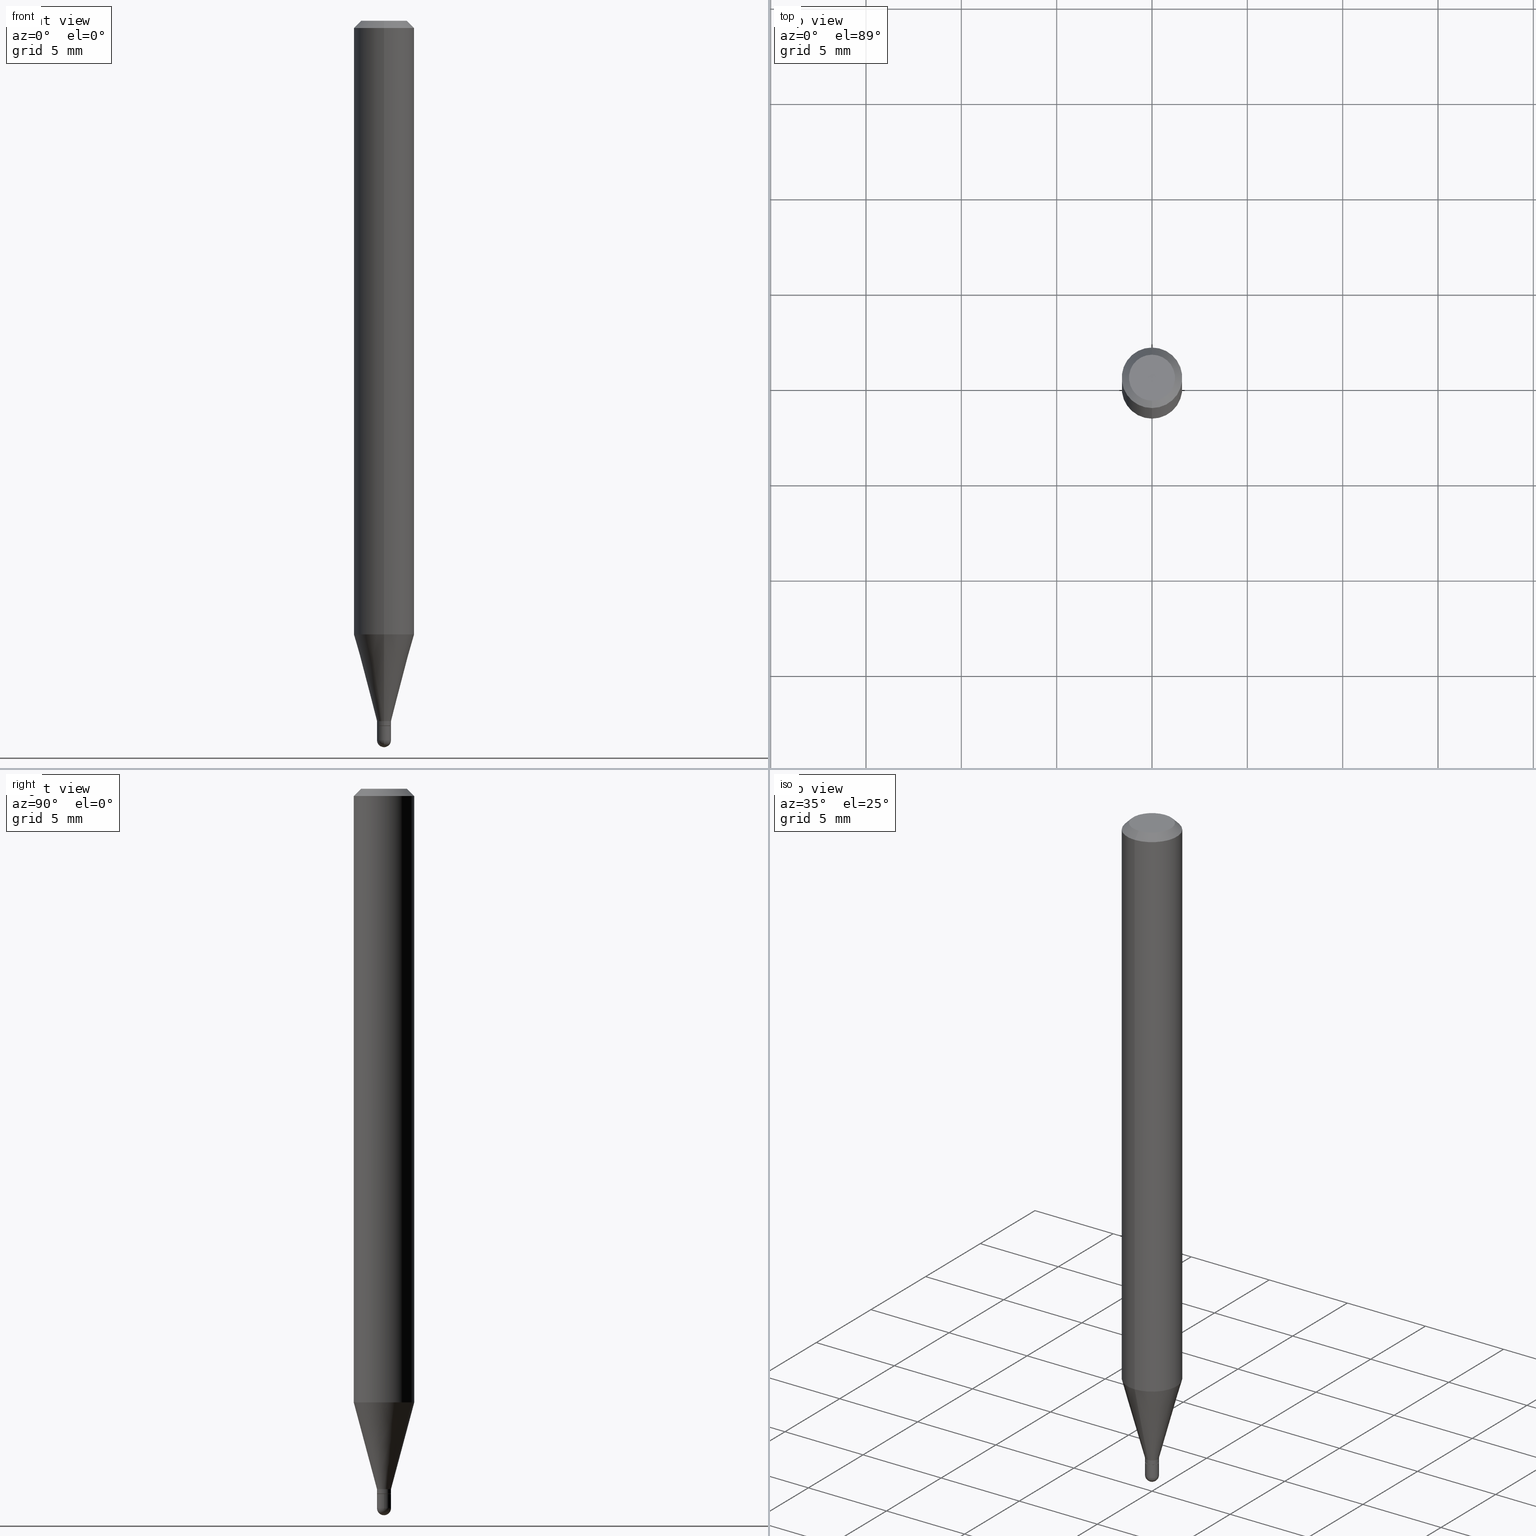
[diagram: canonical four-view strip — front | top / right | iso, engineering-drawing reading convention]
A machine part, canonical four-view strip (front | top / right | iso — engineering-drawing reading convention). The complete STEP part file that produces these views, byte-faithful:
ISO-10303-21;
HEADER;
FILE_DESCRIPTION (( 'STEP AP203' ),
    '1' );
FILE_NAME ('03053.STEP',
    '2024-03-08T18:04:14',
    ( '' ),
    ( '' ),
    'SwSTEP 2.0',
    'SolidWorks 2023',
    '' );
FILE_SCHEMA (( 'CONFIG_CONTROL_DESIGN' ));
ENDSEC;

DATA;
#1 = LOCAL_TIME ( 13, 4, 14.00000000000000000, #149 ) ;
#2 = CARTESIAN_POINT ( 'NONE',  ( 4.364351673553919652E-16, 0.06249999999999995143, -0.01499999999999997863 ) ) ;
#3 = AXIS2_PLACEMENT_3D ( 'NONE', #198, #191, #73 ) ;
#4 = VERTEX_POINT ( 'NONE', #333 ) ;
#5 = ADVANCED_FACE ( 'NONE', ( #252 ), #392, .T. ) ;
#6 = DIRECTION ( 'NONE',  ( 1.000000000000000000, -6.982962677686299054E-15, 0.000000000000000000 ) ) ;
#7 = ORIENTED_EDGE ( 'NONE', *, *, #282, .T. ) ;
#8 = DIRECTION ( 'NONE',  ( -2.445468806185136597E-29, 3.491481338843145583E-15, 1.000000000000000000 ) ) ;
#9 = ORIENTED_EDGE ( 'NONE', *, *, #81, .T. ) ;
#10 = DIRECTION ( 'NONE',  ( -2.445481349067954687E-29, 3.491463376721053422E-15, 1.000000000000000000 ) ) ;
#11 = EDGE_LOOP ( 'NONE', ( #364, #246, #322, #272, #13 ) ) ;
#12 = CARTESIAN_POINT ( 'NONE',  ( 3.631503920468710854E-29, -5.188371266710256857E-15, -1.485500000000000043 ) ) ;
#13 = ORIENTED_EDGE ( 'NONE', *, *, #143, .F. ) ;
#14 = EDGE_CURVE ( 'NONE', #47, #237, #351, .T. ) ;
#15 = DIRECTION ( 'NONE',  ( -2.445468806185136597E-29, 3.491481338843145583E-15, 1.000000000000000000 ) ) ;
#16 = ORIENTED_EDGE ( 'NONE', *, *, #471, .T. ) ;
#17 = CARTESIAN_POINT ( 'NONE',  ( 3.536166030752262621E-29, -5.048656042738642851E-15, -1.445999999999999730 ) ) ;
#18 = AXIS2_PLACEMENT_3D ( 'NONE', #77, #283, #277 ) ;
#19 = ORIENTED_EDGE ( 'NONE', *, *, #265, .F. ) ;
#20 = AXIS2_PLACEMENT_3D ( 'NONE', #263, #426, #501 ) ;
#21 = DATE_AND_TIME ( #215, #433 ) ;
#22 = ADVANCED_FACE ( 'NONE', ( #182 ), #301, .T. ) ;
#23 = FACE_OUTER_BOUND ( 'NONE', #156, .T. ) ;
#24 = CARTESIAN_POINT ( 'NONE',  ( 3.560620844242942333E-29, -5.083570676505854773E-15, -1.456000000000000183 ) ) ;
#25 = DIRECTION ( 'NONE',  ( -2.445481349067954126E-29, 3.491463376721053817E-15, 1.000000000000000000 ) ) ;
#26 = LOCAL_TIME ( 13, 4, 14.00000000000000000, #39 ) ;
#27 = VECTOR ( 'NONE', #379, 39.37007874015748143 ) ;
#28 = CARTESIAN_POINT ( 'NONE',  ( -4.287811248607203282E-16, -0.06250000000000005551, -0.01499999999999954321 ) ) ;
#29 = PERSON_AND_ORGANIZATION ( #262, #261 ) ;
#30 = PLANE ( 'NONE',  #185 ) ;
#31 = PERSON_AND_ORGANIZATION_ROLE ( 'design_supplier' ) ;
#32 = CARTESIAN_POINT ( 'NONE',  ( -5.856629225201852265E-45, 8.361628461660476636E-31, 2.394877894870875462E-16 ) ) ;
#33 = PERSON_AND_ORGANIZATION ( #262, #261 ) ;
#34 = AXIS2_PLACEMENT_3D ( 'NONE', #463, #180, #339 ) ;
#35 = AXIS2_PLACEMENT_3D ( 'NONE', #386, #499, #144 ) ;
#36 = LINE ( 'NONE', #400, #267 ) ;
#37 = CC_DESIGN_PERSON_AND_ORGANIZATION_ASSIGNMENT ( #225, #387, ( #140 ) ) ;
#38 = ORIENTED_EDGE ( 'NONE', *, *, #147, .F. ) ;
#39 = COORDINATED_UNIVERSAL_TIME_OFFSET ( 5, 0, .BEHIND. ) ;
#40 = CARTESIAN_POINT ( 'NONE',  ( -5.856629225201852265E-45, 8.361628461660476636E-31, 2.394877894870875462E-16 ) ) ;
#41 = ORIENTED_EDGE ( 'NONE', *, *, #442, .T. ) ;
#42 = CARTESIAN_POINT ( 'NONE',  ( 3.560620844242942333E-29, -5.083570676505854773E-15, -1.456000000000000183 ) ) ;
#43 = EDGE_CURVE ( 'NONE', #127, #361, #169, .T. ) ;
#44 = DIRECTION ( 'NONE',  ( -4.937700262164674260E-15, -0.7071067811865632269, 0.7071067811865319186 ) ) ;
#45 = VECTOR ( 'NONE', #473, 39.37007874015748854 ) ;
#46 = FACE_OUTER_BOUND ( 'NONE', #11, .T. ) ;
#47 = VERTEX_POINT ( 'NONE', #221 ) ;
#48 = ORIENTED_EDGE ( 'NONE', *, *, #43, .F. ) ;
#49 = DIRECTION ( 'NONE',  ( 1.000000000000000000, -6.982962677686299054E-15, 0.000000000000000000 ) ) ;
#50 = APPROVAL_PERSON_ORGANIZATION ( #29, #128, #256 ) ;
#51 = ORIENTED_EDGE ( 'NONE', *, *, #120, .T. ) ;
#52 = ADVANCED_FACE ( 'NONE', ( #495 ), #136, .T. ) ;
#53 = AXIS2_PLACEMENT_3D ( 'NONE', #186, #303, #106 ) ;
#54 = CARTESIAN_POINT ( 'NONE',  ( 3.631503920468710854E-29, -5.188371266710256857E-15, -1.485500000000000043 ) ) ;
#55 = VERTEX_POINT ( 'NONE', #266 ) ;
#56 = DIRECTION ( 'NONE',  ( 1.000000000000000000, -6.982962677686266711E-15, 4.876176775795935793E-29 ) ) ;
#57 = ORIENTED_EDGE ( 'NONE', *, *, #414, .T. ) ;
#58 = ADVANCED_FACE ( 'NONE', ( #141 ), #139, .T. ) ;
#59 = COORDINATED_UNIVERSAL_TIME_OFFSET ( 5, 0, .BEHIND. ) ;
#60 = VECTOR ( 'NONE', #245, 39.37007874015748143 ) ;
#61 = EDGE_LOOP ( 'NONE', ( #154, #74 ) ) ;
#62 = CIRCLE ( 'NONE', #295, 0.01400000000000000203 ) ;
#63 = CIRCLE ( 'NONE', #275, 0.06250000000000000000 ) ;
#64 = CARTESIAN_POINT ( 'NONE',  ( -3.773273898774340269E-16, -0.04749999999999999362, 4.053322998813375719E-16 ) ) ;
#65 = FACE_OUTER_BOUND ( 'NONE', #481, .T. ) ;
#66 = DIRECTION ( 'NONE',  ( -2.445468806185136597E-29, 3.491481338843145583E-15, 1.000000000000000000 ) ) ;
#67 = ADVANCED_FACE ( 'NONE', ( #459 ), #343, .F. ) ;
#68 = CIRCLE ( 'NONE', #359, 0.01449999999999992441 ) ;
#69 = DIRECTION ( 'NONE',  ( -2.445481349067954687E-29, 3.491463376721053422E-15, 1.000000000000000000 ) ) ;
#70 =( CONVERSION_BASED_UNIT ( 'INCH', #187 ) LENGTH_UNIT ( ) NAMED_UNIT ( #231 ) );
#71 = DIRECTION ( 'NONE',  ( -6.982962677686265922E-15, -1.000000000000000000, 3.491463376721053028E-15 ) ) ;
#72 = EDGE_CURVE ( 'NONE', #211, #237, #224, .T. ) ;
#73 = DIRECTION ( 'NONE',  ( 1.000000000000000000, -6.982962677686299054E-15, 0.000000000000000000 ) ) ;
#74 = ORIENTED_EDGE ( 'NONE', *, *, #143, .T. ) ;
#75 = DATE_AND_TIME ( #268, #472 ) ;
#76 = CIRCLE ( 'NONE', #440, 0.06250000000000000000 ) ;
#77 = CARTESIAN_POINT ( 'NONE',  ( 0.000000000000000000, 0.000000000000000000, 0.000000000000000000 ) ) ;
#78 = ORIENTED_EDGE ( 'NONE', *, *, #241, .F. ) ;
#79 = DIRECTION ( 'NONE',  ( -6.982962677686266711E-15, -1.000000000000000000, 3.491463376721053028E-15 ) ) ;
#80 = VERTEX_POINT ( 'NONE', #181 ) ;
#81 = EDGE_CURVE ( 'NONE', #205, #4, #367, .T. ) ;
#82 = DIRECTION ( 'NONE',  ( 2.445481349067954687E-29, -3.491463376721053422E-15, -1.000000000000000000 ) ) ;
#83 = VERTEX_POINT ( 'NONE', #64 ) ;
#84 = AXIS2_PLACEMENT_3D ( 'NONE', #119, #82, #238 ) ;
#85 = CARTESIAN_POINT ( 'NONE',  ( 2.735589532676716016E-16, 0.01449999999999487463, -1.445999999999999730 ) ) ;
#86 = CONICAL_SURFACE ( 'NONE', #419, 0.01400000000000000203, 0.7853981633974739252 ) ;
#87 = FACE_OUTER_BOUND ( 'NONE', #94, .T. ) ;
#88 = ORIENTED_EDGE ( 'NONE', *, *, #337, .F. ) ;
#89 = ADVANCED_FACE ( 'NONE', ( #345 ), #497, .F. ) ;
#90 = DIRECTION ( 'NONE',  ( -2.445481349067954687E-29, 3.491463376721053422E-15, 1.000000000000000000 ) ) ;
#91 = EDGE_LOOP ( 'NONE', ( #330, #51, #170, #369 ) ) ;
#92 = LINE ( 'NONE', #297, #124 ) ;
#93 = AXIS2_PLACEMENT_3D ( 'NONE', #12, #133, #370 ) ;
#94 = EDGE_LOOP ( 'NONE', ( #410, #57, #16, #132 ) ) ;
#95 = CIRCLE ( 'NONE', #3, 0.01450000000000000074 ) ;
#96 = FACE_OUTER_BOUND ( 'NONE', #113, .T. ) ;
#97 = ORIENTED_EDGE ( 'NONE', *, *, #273, .F. ) ;
#98 = EDGE_CURVE ( 'NONE', #486, #452, #403, .T. ) ;
#99 = DATE_TIME_ROLE ( 'creation_date' ) ;
#100 = ORIENTED_EDGE ( 'NONE', *, *, #233, .F. ) ;
#101 = DATE_AND_TIME ( #152, #302 ) ;
#102 = DIRECTION ( 'NONE',  ( -2.445481349067954687E-29, 3.491463376721053422E-15, 1.000000000000000000 ) ) ;
#103 = CARTESIAN_POINT ( 'NONE',  ( 1.012529588264864651E-16, 0.01449999999999491626, -1.456000000000000183 ) ) ;
#104 = CC_DESIGN_DATE_AND_TIME_ASSIGNMENT ( #75, #99, ( #496 ) ) ;
#105 = DIRECTION ( 'NONE',  ( -6.982962677686265922E-15, -1.000000000000000000, 4.370956789862821150E-15 ) ) ;
#106 = DIRECTION ( 'NONE',  ( -6.982962677686265922E-15, -1.000000000000000000, 3.491463376721053028E-15 ) ) ;
#107 = APPROVAL_ROLE ( '' ) ;
#108 = AXIS2_PLACEMENT_3D ( 'NONE', #109, #145, #71 ) ;
#109 = CARTESIAN_POINT ( 'NONE',  ( 0.000000000000000000, 0.000000000000000000, 0.000000000000000000 ) ) ;
#110 = ADVANCED_FACE ( 'NONE', ( #65 ), #30, .F. ) ;
#111 =( NAMED_UNIT ( * ) SI_UNIT ( $, .STERADIAN. ) SOLID_ANGLE_UNIT ( ) );
#112 = CARTESIAN_POINT ( 'NONE',  ( 3.560620844242942333E-29, -5.083570676505854773E-15, -1.456000000000000183 ) ) ;
#113 = EDGE_LOOP ( 'NONE', ( #209, #122, #165, #78 ) ) ;
#114 = APPROVAL_STATUS ( 'not_yet_approved' ) ;
#115 = CARTESIAN_POINT ( 'NONE',  ( 4.440892098500937762E-16, 0.06249999999999993755, -0.01499999999999997863 ) ) ;
#116 = AXIS2_PLACEMENT_3D ( 'NONE', #200, #357, #476 ) ;
#117 = CYLINDRICAL_SURFACE ( 'NONE', #18, 0.01449999999999992441 ) ;
#118 = MANIFOLD_SOLID_BREP ( 'Body-Move/Copy2[2]', #434 ) ;
#119 = CARTESIAN_POINT ( 'NONE',  ( 3.668222023601873193E-31, -5.237195065081496267E-17, -0.01499999999999976179 ) ) ;
#120 = EDGE_CURVE ( 'NONE', #55, #255, #474, .T. ) ;
#121 = FACE_OUTER_BOUND ( 'NONE', #395, .T. ) ;
#122 = ORIENTED_EDGE ( 'NONE', *, *, #233, .T. ) ;
#123 = MANIFOLD_SOLID_BREP ( 'Body-Move/Copy2[1]', #326 ) ;
#124 = VECTOR ( 'NONE', #363, 39.37007874015748143 ) ;
#125 = CARTESIAN_POINT ( 'NONE',  ( 1.012523398458496063E-16, 0.01399999999999491755, -1.456000000000000183 ) ) ;
#126 = CONICAL_SURFACE ( 'NONE', #420, 0.01449999999999992441, 0.2617993877991505181 ) ;
#127 = VERTEX_POINT ( 'NONE', #269 ) ;
#128 = APPROVAL ( #469, 'UNSPECIFIED' ) ;
#129 = DIRECTION ( 'NONE',  ( -2.445468806185136877E-29, 3.491481338843145188E-15, 1.000000000000000000 ) ) ;
#130 = VERTEX_POINT ( 'NONE', #456 ) ;
#131 = LINE ( 'NONE', #177, #60 ) ;
#132 = ORIENTED_EDGE ( 'NONE', *, *, #98, .F. ) ;
#133 = DIRECTION ( 'NONE',  ( 1.000000000000000000, -6.982962677686265922E-15, 4.883557194083112340E-29 ) ) ;
#134 = EDGE_CURVE ( 'NONE', #207, #211, #222, .T. ) ;
#135 = VERTEX_POINT ( 'NONE', #264 ) ;
#136 = CONICAL_SURFACE ( 'NONE', #251, 0.01400000000000000203, 0.7853981633974739252 ) ;
#137 = DIRECTION ( 'NONE',  ( -2.445481349067954687E-29, 3.491463376721053422E-15, 1.000000000000000000 ) ) ;
#138 = EDGE_LOOP ( 'NONE', ( #446, #338, #494, #408 ) ) ;
#139 = CYLINDRICAL_SURFACE ( 'NONE', #108, 0.06250000000000000000 ) ;
#140 = PRODUCT_DEFINITION_FORMATION_WITH_SPECIFIED_SOURCE ( 'ANY', '', #173, .NOT_KNOWN. ) ;
#141 = FACE_OUTER_BOUND ( 'NONE', #278, .T. ) ;
#142 = CIRCLE ( 'NONE', #425, 0.01450000000000000074 ) ;
#143 = EDGE_CURVE ( 'NONE', #80, #162, #142, .T. ) ;
#144 = DIRECTION ( 'NONE',  ( -6.982962677686265922E-15, -1.000000000000000000, 0.000000000000000000 ) ) ;
#145 = DIRECTION ( 'NONE',  ( -2.445481349067954687E-29, 3.491463376721053422E-15, 1.000000000000000000 ) ) ;
#146 = DIRECTION ( 'NONE',  ( -1.000000000000000000, 6.982962677686265922E-15, -4.883557194083112340E-29 ) ) ;
#147 = EDGE_CURVE ( 'NONE', #83, #47, #384, .T. ) ;
#148 = CIRCLE ( 'NONE', #157, 0.01450000000000000074 ) ;
#149 = COORDINATED_UNIVERSAL_TIME_OFFSET ( 5, 0, .BEHIND. ) ;
#150 = DIRECTION ( 'NONE',  ( 4.937700262164548042E-15, 0.7071067811865451302, -0.7071067811865499042 ) ) ;
#151 = ORIENTED_EDGE ( 'NONE', *, *, #199, .T. ) ;
#152 = CALENDAR_DATE ( 2024, 8, 3 ) ;
#153 = CARTESIAN_POINT ( 'NONE',  ( -1.012529588264149623E-16, -0.01450000000000497419, -1.445999999999999730 ) ) ;
#154 = ORIENTED_EDGE ( 'NONE', *, *, #489, .T. ) ;
#155 = DIRECTION ( 'NONE',  ( 1.839019923739601893E-15, 0.2588190451025252359, 0.9659258262890670910 ) ) ;
#156 = EDGE_LOOP ( 'NONE', ( #288, #276, #19, #172 ) ) ;
#157 = AXIS2_PLACEMENT_3D ( 'NONE', #415, #247, #49 ) ;
#158 = ADVANCED_FACE ( 'NONE', ( #23 ), #508, .T. ) ;
#159 = AXIS2_PLACEMENT_3D ( 'NONE', #380, #219, #260 ) ;
#160 = DIRECTION ( 'NONE',  ( -2.445481349067954687E-29, 3.491463376721053422E-15, 1.000000000000000000 ) ) ;
#161 = LINE ( 'NONE', #236, #325 ) ;
#162 = VERTEX_POINT ( 'NONE', #506 ) ;
#163 = DIRECTION ( 'NONE',  ( 7.105427357601001070E-15, 1.000000000000000000, 0.000000000000000000 ) ) ;
#164 = UNCERTAINTY_MEASURE_WITH_UNIT (LENGTH_MEASURE( 1.000000000000000082E-05 ), #70, 'distance_accuracy_value', 'NONE');
#165 = ORIENTED_EDGE ( 'NONE', *, *, #134, .F. ) ;
#166 = EDGE_CURVE ( 'NONE', #83, #416, #450, .T. ) ;
#167 = ADVANCED_BREP_SHAPE_REPRESENTATION ( '03053', ( #123, #118, #34 ), #483 ) ;
#168 = DIRECTION ( 'NONE',  ( -6.982962677686265922E-15, -1.000000000000000000, 3.491463376721053028E-15 ) ) ;
#169 = CIRCLE ( 'NONE', #159, 0.01400000000000000203 ) ;
#170 = ORIENTED_EDGE ( 'NONE', *, *, #183, .F. ) ;
#171 = CARTESIAN_POINT ( 'NONE',  ( 0.000000000000000000, 0.000000000000000000, 0.000000000000000000 ) ) ;
#172 = ORIENTED_EDGE ( 'NONE', *, *, #398, .F. ) ;
#173 = PRODUCT ( '03053', '03053', '', ( #428 ) ) ;
#174 = FACE_OUTER_BOUND ( 'NONE', #196, .T. ) ;
#175 = DIRECTION ( 'NONE',  ( 6.982962677686265922E-15, 1.000000000000000000, -3.483106191921935554E-15 ) ) ;
#176 = CIRCLE ( 'NONE', #449, 0.01449999999999990186 ) ;
#177 = CARTESIAN_POINT ( 'NONE',  ( -1.012529588264503255E-16, -0.01449999999999992441, 5.062621896245500749E-17 ) ) ;
#178 = ORIENTED_EDGE ( 'NONE', *, *, #188, .F. ) ;
#179 = AXIS2_PLACEMENT_3D ( 'NONE', #460, #189, #346 ) ;
#180 = DIRECTION ( 'NONE',  ( 0.000000000000000000, 0.000000000000000000, 1.000000000000000000 ) ) ;
#181 = CARTESIAN_POINT ( 'NONE',  ( -0.01450000000000000074, -5.032067482418343233E-15, -1.456000000000000183 ) ) ;
#182 = FACE_OUTER_BOUND ( 'NONE', #138, .T. ) ;
#183 = EDGE_CURVE ( 'NONE', #130, #255, #95, .T. ) ;
#184 = CARTESIAN_POINT ( 'NONE',  ( 3.631503920468710854E-29, -5.188371266710256857E-15, -1.485500000000000043 ) ) ;
#185 = AXIS2_PLACEMENT_3D ( 'NONE', #220, #25, #340 ) ;
#186 = CARTESIAN_POINT ( 'NONE',  ( 0.000000000000000000, 0.000000000000000000, 0.000000000000000000 ) ) ;
#187 = LENGTH_MEASURE_WITH_UNIT ( LENGTH_MEASURE( 0.02539999999999999897 ), #377 );
#188 = EDGE_CURVE ( 'NONE', #127, #205, #316, .T. ) ;
#189 = DIRECTION ( 'NONE',  ( -2.445481349067954687E-29, 3.491463376721053422E-15, 1.000000000000000000 ) ) ;
#190 = SECURITY_CLASSIFICATION_LEVEL ( 'unclassified' ) ;
#191 = DIRECTION ( 'NONE',  ( -2.445468806185136597E-29, 3.491481338843145583E-15, 1.000000000000000000 ) ) ;
#192 = VECTOR ( 'NONE', #381, 39.37007874015748143 ) ;
#193 = PERSON_AND_ORGANIZATION_ROLE ( 'creator' ) ;
#194 = CIRCLE ( 'NONE', #116, 0.01450000000000000074 ) ;
#195 = CARTESIAN_POINT ( 'NONE',  ( -4.364351673553916201E-16, -0.06250000000000000000, 2.182164610450658142E-16 ) ) ;
#196 = EDGE_LOOP ( 'NONE', ( #100, #318, #234, #88 ) ) ;
#197 = PERSON_AND_ORGANIZATION ( #262, #261 ) ;
#198 = CARTESIAN_POINT ( 'NONE',  ( 3.632743911588020939E-29, -5.186595528851492996E-15, -1.485500000000000043 ) ) ;
#199 = EDGE_CURVE ( 'NONE', #361, #127, #62, .T. ) ;
#200 = CARTESIAN_POINT ( 'NONE',  ( 3.632743911588020939E-29, -5.186595528851492996E-15, -1.485500000000000043 ) ) ;
#201 = CARTESIAN_POINT ( 'NONE',  ( 3.536166030752262621E-29, -5.048656042738642851E-15, -1.445999999999999730 ) ) ;
#202 = EDGE_LOOP ( 'NONE', ( #7, #356 ) ) ;
#203 = EDGE_CURVE ( 'NONE', #452, #486, #68, .T. ) ;
#204 = CARTESIAN_POINT ( 'NONE',  ( 0.01450000000000000074, -1.012529588264508678E-16, 7.070456324904107110E-31 ) ) ;
#205 = VERTEX_POINT ( 'NONE', #360 ) ;
#206 = CYLINDRICAL_SURFACE ( 'NONE', #418, 0.01450000000000000074 ) ;
#207 = VERTEX_POINT ( 'NONE', #280 ) ;
#208 = VECTOR ( 'NONE', #487, 39.37007874015748143 ) ;
#209 = ORIENTED_EDGE ( 'NONE', *, *, #203, .T. ) ;
#210 = DIRECTION ( 'NONE',  ( -2.445481349067954687E-29, 3.491463376721053422E-15, 1.000000000000000000 ) ) ;
#211 = VERTEX_POINT ( 'NONE', #228 ) ;
#212 = CARTESIAN_POINT ( 'NONE',  ( 3.840629472727447874E-16, 0.04749999999999999362, 7.364327909283752044E-17 ) ) ;
#213 = ORIENTED_EDGE ( 'NONE', *, *, #313, .T. ) ;
#214 = AXIS2_PLACEMENT_3D ( 'NONE', #490, #210, #443 ) ;
#215 = CALENDAR_DATE ( 2024, 8, 3 ) ;
#216 = ORIENTED_EDGE ( 'NONE', *, *, #223, .T. ) ;
#217 = COORDINATED_UNIVERSAL_TIME_OFFSET ( 5, 0, .BEHIND. ) ;
#218 = CC_DESIGN_PERSON_AND_ORGANIZATION_ASSIGNMENT ( #453, #193, ( #496 ) ) ;
#219 = DIRECTION ( 'NONE',  ( -2.445481349067954687E-29, 3.491463376721053422E-15, 1.000000000000000000 ) ) ;
#220 = CARTESIAN_POINT ( 'NONE',  ( 3.560620844242942333E-29, -5.083570676505854773E-15, -1.456000000000000183 ) ) ;
#221 = CARTESIAN_POINT ( 'NONE',  ( -4.364351673553912750E-16, -0.06250000000000005551, -0.01499999999999954321 ) ) ;
#222 = CIRCLE ( 'NONE', #464, 0.06250000000000000000 ) ;
#223 = EDGE_CURVE ( 'NONE', #207, #47, #438, .T. ) ;
#224 = LINE ( 'NONE', #341, #192 ) ;
#225 = PERSON_AND_ORGANIZATION ( #262, #261 ) ;
#226 = DIRECTION ( 'NONE',  ( -6.982962677686265922E-15, -1.000000000000000000, 0.000000000000000000 ) ) ;
#227 = PRODUCT_DEFINITION_SHAPE ( 'NONE', 'NONE',  #496 ) ;
#228 = CARTESIAN_POINT ( 'NONE',  ( 4.440892098500933817E-16, 0.06249999999999555911, -1.266861561236694467 ) ) ;
#229 = AXIS2_PLACEMENT_3D ( 'NONE', #243, #8, #250 ) ;
#230 = PERSON_AND_ORGANIZATION ( #262, #261 ) ;
#231 = DIMENSIONAL_EXPONENTS ( 1.000000000000000000, 0.000000000000000000, 0.000000000000000000, 0.000000000000000000, 0.000000000000000000, 0.000000000000000000, 0.000000000000000000 ) ;
#232 = DIRECTION ( 'NONE',  ( -2.445481349067954967E-29, 3.491463376721053817E-15, 1.000000000000000000 ) ) ;
#233 = EDGE_CURVE ( 'NONE', #486, #211, #36, .T. ) ;
#234 = ORIENTED_EDGE ( 'NONE', *, *, #241, .T. ) ;
#235 = APPROVAL_DATE_TIME ( #484, #344 ) ;
#236 = CARTESIAN_POINT ( 'NONE',  ( -0.01450000000000000074, 1.030286966852145322E-16, -7.132455880869613131E-31 ) ) ;
#237 = VERTEX_POINT ( 'NONE', #115 ) ;
#238 = DIRECTION ( 'NONE',  ( 6.982962677686265922E-15, 1.000000000000000000, -3.483106191921935554E-15 ) ) ;
#239 = ORIENTED_EDGE ( 'NONE', *, *, #299, .T. ) ;
#240 = VECTOR ( 'NONE', #129, 39.37007874015748143 ) ;
#241 = EDGE_CURVE ( 'NONE', #452, #207, #320, .T. ) ;
#242 = AXIS2_PLACEMENT_3D ( 'NONE', #355, #394, #389 ) ;
#243 = CARTESIAN_POINT ( 'NONE',  ( 3.560602581805559105E-29, -5.083596829355621130E-15, -1.456000000000000183 ) ) ;
#244 = ORIENTED_EDGE ( 'NONE', *, *, #414, .F. ) ;
#245 = DIRECTION ( 'NONE',  ( -2.445481349067954967E-29, 3.491463376721053817E-15, 1.000000000000000000 ) ) ;
#246 = ORIENTED_EDGE ( 'NONE', *, *, #183, .T. ) ;
#247 = DIRECTION ( 'NONE',  ( -2.445468806185136597E-29, 3.491481338843145583E-15, 1.000000000000000000 ) ) ;
#248 = ORIENTED_EDGE ( 'NONE', *, *, #373, .F. ) ;
#249 = AXIS2_PLACEMENT_3D ( 'NONE', #311, #467, #6 ) ;
#250 = DIRECTION ( 'NONE',  ( 1.000000000000000000, -6.982962677686299054E-15, 0.000000000000000000 ) ) ;
#251 = AXIS2_PLACEMENT_3D ( 'NONE', #24, #69, #421 ) ;
#252 = FACE_OUTER_BOUND ( 'NONE', #257, .T. ) ;
#253 = ADVANCED_FACE ( 'NONE', ( #121 ), #86, .T. ) ;
#254 = DIRECTION ( 'NONE',  ( -2.445481349067954687E-29, 3.491463376721053422E-15, 1.000000000000000000 ) ) ;
#255 = VERTEX_POINT ( 'NONE', #274 ) ;
#256 = APPROVAL_ROLE ( '' ) ;
#257 = EDGE_LOOP ( 'NONE', ( #38, #488, #324, #468 ) ) ;
#258 = ADVANCED_FACE ( 'NONE', ( #391 ), #117, .T. ) ;
#259 = CONICAL_SURFACE ( 'NONE', #84, 0.06250000000000000000, 0.7853981633974483900 ) ;
#260 = DIRECTION ( 'NONE',  ( -6.982962677686265922E-15, -1.000000000000000000, 0.000000000000000000 ) ) ;
#261 = ORGANIZATION ( 'UNSPECIFIED', 'UNSPECIFIED', '' ) ;
#262 = PERSON ( 'UNSPECIFIED', 'UNSPECIFIED', 'UNSPECIFIED', ('UNSPECIFIED'), ('UNSPECIFIED'), ('UNSPECIFIED') ) ;
#263 = CARTESIAN_POINT ( 'NONE',  ( 3.316907271900976096E-16, 0.04749999999999999362, -4.610061565070625880E-17 ) ) ;
#264 = CARTESIAN_POINT ( 'NONE',  ( 0.01450000000000000074, -5.236349137930008608E-15, -1.485500000000000043 ) ) ;
#265 = EDGE_CURVE ( 'NONE', #135, #335, #348, .T. ) ;
#266 = CARTESIAN_POINT ( 'NONE',  ( 3.666343222598739767E-29, -5.239885615052863969E-15, -1.499999999999999778 ) ) ;
#267 = VECTOR ( 'NONE', #155, 39.37007874015748854 ) ;
#268 = CALENDAR_DATE ( 2024, 8, 3 ) ;
#269 = CARTESIAN_POINT ( 'NONE',  ( -9.776147748757212772E-17, -0.01400000000000508477, -1.456000000000000183 ) ) ;
#270 = COORDINATED_UNIVERSAL_TIME_OFFSET ( 5, 0, .BEHIND. ) ;
#271 = DIRECTION ( 'NONE',  ( -6.982962677686265922E-15, -1.000000000000000000, 0.000000000000000000 ) ) ;
#272 = ORIENTED_EDGE ( 'NONE', *, *, #382, .T. ) ;
#273 = EDGE_CURVE ( 'NONE', #416, #237, #470, .T. ) ;
#274 = CARTESIAN_POINT ( 'NONE',  ( -1.012529588264141858E-16, -0.01450000000000514072, -1.485500000000000043 ) ) ;
#275 = AXIS2_PLACEMENT_3D ( 'NONE', #445, #90, #323 ) ;
#276 = ORIENTED_EDGE ( 'NONE', *, *, #500, .T. ) ;
#277 = DIRECTION ( 'NONE',  ( -6.982962677686265922E-15, -1.000000000000000000, 3.491463376721053028E-15 ) ) ;
#278 = EDGE_LOOP ( 'NONE', ( #432, #454, #216, #248 ) ) ;
#279 = CALENDAR_DATE ( 2024, 8, 3 ) ;
#280 = CARTESIAN_POINT ( 'NONE',  ( -4.364351673553606573E-16, -0.06250000000000442701, -1.266861561236694023 ) ) ;
#281 = ORIENTED_EDGE ( 'NONE', *, *, #479, .T. ) ;
#282 = EDGE_CURVE ( 'NONE', #416, #83, #307, .T. ) ;
#283 = DIRECTION ( 'NONE',  ( -2.445481349067954687E-29, 3.491463376721053422E-15, 1.000000000000000000 ) ) ;
#284 = CIRCLE ( 'NONE', #214, 0.01449999999999992614 ) ;
#285 = AXIS2_PLACEMENT_3D ( 'NONE', #413, #371, #175 ) ;
#286 = VECTOR ( 'NONE', #44, 39.37007874015748143 ) ;
#287 = DIRECTION ( 'NONE',  ( -6.982962677686265922E-15, -1.000000000000000000, 0.000000000000000000 ) ) ;
#288 = ORIENTED_EDGE ( 'NONE', *, *, #120, .F. ) ;
#289 = FACE_OUTER_BOUND ( 'NONE', #405, .T. ) ;
#290 = ORIENTED_EDGE ( 'NONE', *, *, #442, .F. ) ;
#291 = CC_DESIGN_PERSON_AND_ORGANIZATION_ASSIGNMENT ( #33, #455, ( #173 ) ) ;
#292 = LINE ( 'NONE', #204, #240 ) ;
#293 = ORIENTED_EDGE ( 'NONE', *, *, #489, .F. ) ;
#294 = CARTESIAN_POINT ( 'NONE',  ( -1.012529588264149623E-16, -0.01450000000000497419, -1.445999999999999730 ) ) ;
#295 = AXIS2_PLACEMENT_3D ( 'NONE', #112, #511, #354 ) ;
#296 = ORIENTED_EDGE ( 'NONE', *, *, #81, .F. ) ;
#297 = CARTESIAN_POINT ( 'NONE',  ( 1.030286966852139652E-16, 0.01449999999999992441, -5.062621896245500749E-17 ) ) ;
#298 = ORIENTED_EDGE ( 'NONE', *, *, #43, .T. ) ;
#299 = EDGE_CURVE ( 'NONE', #130, #80, #161, .T. ) ;
#300 =( NAMED_UNIT ( * ) PLANE_ANGLE_UNIT ( ) SI_UNIT ( $, .RADIAN. ) );
#301 = CYLINDRICAL_SURFACE ( 'NONE', #53, 0.06250000000000000000 ) ;
#302 = LOCAL_TIME ( 13, 4, 14.00000000000000000, #270 ) ;
#303 = DIRECTION ( 'NONE',  ( -2.445481349067954687E-29, 3.491463376721053422E-15, 1.000000000000000000 ) ) ;
#304 = CARTESIAN_POINT ( 'NONE',  ( 3.098086319855446191E-29, -4.423200744433573842E-15, -1.266861561236694245 ) ) ;
#305 = CC_DESIGN_PERSON_AND_ORGANIZATION_ASSIGNMENT ( #347, #31, ( #140 ) ) ;
#306 = CARTESIAN_POINT ( 'NONE',  ( 3.559398103568409441E-29, -5.081824944817494769E-15, -1.455500000000000460 ) ) ;
#307 = CIRCLE ( 'NONE', #401, 0.04749999999999999362 ) ;
#308 = DIRECTION ( 'NONE',  ( -6.982962677686266711E-15, -1.000000000000000000, 0.000000000000000000 ) ) ;
#309 = AXIS2_PLACEMENT_3D ( 'NONE', #184, #146, #308 ) ;
#310 = DATE_AND_TIME ( #353, #1 ) ;
#311 = CARTESIAN_POINT ( 'NONE',  ( 3.632743911588020939E-29, -5.186595528851492996E-15, -1.485500000000000043 ) ) ;
#312 = ORIENTED_EDGE ( 'NONE', *, *, #265, .T. ) ;
#313 = EDGE_CURVE ( 'NONE', #335, #130, #194, .T. ) ;
#314 = APPROVAL_DATE_TIME ( #101, #406 ) ;
#315 = DIRECTION ( 'NONE',  ( -2.445481349067954687E-29, 3.491463376721053422E-15, 1.000000000000000000 ) ) ;
#316 = LINE ( 'NONE', #349, #286 ) ;
#317 = APPROVAL_PERSON_ORGANIZATION ( #197, #406, #107 ) ;
#318 = ORIENTED_EDGE ( 'NONE', *, *, #98, .T. ) ;
#319 = AXIS2_PLACEMENT_3D ( 'NONE', #40, #160, #431 ) ;
#320 = LINE ( 'NONE', #153, #45 ) ;
#321 = CARTESIAN_POINT ( 'NONE',  ( 1.030286966852504993E-16, 0.01449999999999476361, -1.485500000000000043 ) ) ;
#322 = ORIENTED_EDGE ( 'NONE', *, *, #398, .T. ) ;
#323 = DIRECTION ( 'NONE',  ( -6.982962677686265922E-15, -1.000000000000000000, 4.370956789862821150E-15 ) ) ;
#324 = ORIENTED_EDGE ( 'NONE', *, *, #273, .T. ) ;
#325 = VECTOR ( 'NONE', #396, 39.37007874015748143 ) ;
#326 = CLOSED_SHELL ( 'NONE', ( #388, #158, #89, #422, #350 ) ) ;
#327 = SECURITY_CLASSIFICATION ( '', '', #190 ) ;
#328 = DIRECTION ( 'NONE',  ( 1.000000000000000000, -7.105427357601001070E-15, 4.926315508542082329E-29 ) ) ;
#329 = DESIGN_CONTEXT ( 'detailed design', #399, 'design' ) ;
#330 = ORIENTED_EDGE ( 'NONE', *, *, #500, .F. ) ;
#331 = ADVANCED_FACE ( 'NONE', ( #439 ), #259, .T. ) ;
#332 = DIRECTION ( 'NONE',  ( -2.445481349067954687E-29, 3.491463376721053422E-15, 1.000000000000000000 ) ) ;
#333 = CARTESIAN_POINT ( 'NONE',  ( 1.030286966852492297E-16, 0.01449999999999479483, -1.455500000000000460 ) ) ;
#334 = LINE ( 'NONE', #407, #208 ) ;
#335 = VERTEX_POINT ( 'NONE', #321 ) ;
#336 = DIRECTION ( 'NONE',  ( -6.982962677686265922E-15, -1.000000000000000000, 0.000000000000000000 ) ) ;
#337 = EDGE_CURVE ( 'NONE', #211, #207, #63, .T. ) ;
#338 = ORIENTED_EDGE ( 'NONE', *, *, #72, .T. ) ;
#339 = DIRECTION ( 'NONE',  ( 1.000000000000000000, 0.000000000000000000, 0.000000000000000000 ) ) ;
#340 = DIRECTION ( 'NONE',  ( -6.982962677686265922E-15, -1.000000000000000000, 3.491463376721053817E-15 ) ) ;
#341 = CARTESIAN_POINT ( 'NONE',  ( 4.440892098500625669E-16, 0.06250000000000000000, -2.182164610450658142E-16 ) ) ;
#342 = APPROVAL_PERSON_ORGANIZATION ( #430, #344, #393 ) ;
#343 = PLANE ( 'NONE',  #20 ) ;
#344 = APPROVAL ( #114, 'UNSPECIFIED' ) ;
#345 = FACE_OUTER_BOUND ( 'NONE', #61, .T. ) ;
#346 = DIRECTION ( 'NONE',  ( -6.982962677686265922E-15, -1.000000000000000000, 3.483106191921935554E-15 ) ) ;
#347 = PERSON_AND_ORGANIZATION ( #262, #261 ) ;
#348 = CIRCLE ( 'NONE', #249, 0.01450000000000000074 ) ;
#349 = CARTESIAN_POINT ( 'NONE',  ( -9.776147748757212772E-17, -0.01400000000000508477, -1.456000000000000183 ) ) ;
#350 = ADVANCED_FACE ( 'NONE', ( #46 ), #206, .T. ) ;
#351 = CIRCLE ( 'NONE', #179, 0.06250000000000000000 ) ;
#352 = AXIS2_PLACEMENT_3D ( 'NONE', #485, #254, #336 ) ;
#353 = CALENDAR_DATE ( 2024, 8, 3 ) ;
#354 = DIRECTION ( 'NONE',  ( -6.982962677686265922E-15, -1.000000000000000000, 0.000000000000000000 ) ) ;
#355 = CARTESIAN_POINT ( 'NONE',  ( 3.631503920468710854E-29, -5.188371266710256857E-15, -1.485500000000000043 ) ) ;
#356 = ORIENTED_EDGE ( 'NONE', *, *, #166, .T. ) ;
#357 = DIRECTION ( 'NONE',  ( -2.445468806185136597E-29, 3.491481338843145583E-15, 1.000000000000000000 ) ) ;
#358 = VECTOR ( 'NONE', #150, 39.37007874015748143 ) ;
#359 = AXIS2_PLACEMENT_3D ( 'NONE', #201, #477, #271 ) ;
#360 = CARTESIAN_POINT ( 'NONE',  ( -1.012529588264150856E-16, -0.01450000000000505745, -1.455500000000000460 ) ) ;
#361 = VERTEX_POINT ( 'NONE', #125 ) ;
#362 = CYLINDRICAL_SURFACE ( 'NONE', #505, 0.01450000000000000074 ) ;
#363 = DIRECTION ( 'NONE',  ( -2.445481349067954967E-29, 3.491463376721053817E-15, 1.000000000000000000 ) ) ;
#364 = ORIENTED_EDGE ( 'NONE', *, *, #299, .F. ) ;
#365 = ADVANCED_FACE ( 'NONE', ( #96 ), #376, .T. ) ;
#366 = CC_DESIGN_APPROVAL ( #406, ( #496 ) ) ;
#367 = CIRCLE ( 'NONE', #378, 0.01449999999999992614 ) ;
#368 = SPHERICAL_SURFACE ( 'NONE', #93, 0.01449999999999990186 ) ;
#369 = ORIENTED_EDGE ( 'NONE', *, *, #313, .F. ) ;
#370 = DIRECTION ( 'NONE',  ( -6.982962677686265922E-15, -1.000000000000000000, 0.000000000000000000 ) ) ;
#371 = DIRECTION ( 'NONE',  ( 2.445481349067954687E-29, -3.491463376721053422E-15, -1.000000000000000000 ) ) ;
#372 = APPLICATION_CONTEXT ( 'configuration controlled 3d designs of mechanical parts and assemblies' ) ;
#373 = EDGE_CURVE ( 'NONE', #237, #47, #76, .T. ) ;
#374 = CARTESIAN_POINT ( 'NONE',  ( 0.000000000000000000, 0.000000000000000000, 0.000000000000000000 ) ) ;
#375 = ORIENTED_EDGE ( 'NONE', *, *, #471, .F. ) ;
#376 = CONICAL_SURFACE ( 'NONE', #352, 0.01449999999999992441, 0.2617993877991505181 ) ;
#377 =( LENGTH_UNIT ( ) NAMED_UNIT ( * ) SI_UNIT ( $, .METRE. ) );
#378 = AXIS2_PLACEMENT_3D ( 'NONE', #306, #503, #465 ) ;
#379 = DIRECTION ( 'NONE',  ( -4.851104656540964275E-15, -0.7071067811865500152, -0.7071067811865450192 ) ) ;
#380 = CARTESIAN_POINT ( 'NONE',  ( 3.560620844242942333E-29, -5.083570676505854773E-15, -1.456000000000000183 ) ) ;
#381 = DIRECTION ( 'NONE',  ( -2.445481349067954967E-29, 3.491463376721053817E-15, 1.000000000000000000 ) ) ;
#382 = EDGE_CURVE ( 'NONE', #135, #162, #292, .T. ) ;
#383 = CC_DESIGN_SECURITY_CLASSIFICATION ( #327, ( #140 ) ) ;
#384 = LINE ( 'NONE', #28, #27 ) ;
#385 = APPLICATION_PROTOCOL_DEFINITION ( 'international standard', 'config_control_design', 1994, #372 ) ;
#386 = CARTESIAN_POINT ( 'NONE',  ( 3.536166030752262621E-29, -5.048656042738642851E-15, -1.445999999999999730 ) ) ;
#387 = PERSON_AND_ORGANIZATION_ROLE ( 'creator' ) ;
#388 = ADVANCED_FACE ( 'NONE', ( #289 ), #362, .T. ) ;
#389 = DIRECTION ( 'NONE',  ( -6.982962677686265922E-15, -1.000000000000000000, 0.000000000000000000 ) ) ;
#390 = AXIS2_PLACEMENT_3D ( 'NONE', #374, #332, #168 ) ;
#391 = FACE_OUTER_BOUND ( 'NONE', #478, .T. ) ;
#392 = CONICAL_SURFACE ( 'NONE', #285, 0.06250000000000000000, 0.7853981633974483900 ) ;
#393 = APPROVAL_ROLE ( '' ) ;
#394 = DIRECTION ( 'NONE',  ( 1.000000000000000000, -6.982962677686265922E-15, 4.883557194083112340E-29 ) ) ;
#395 = EDGE_LOOP ( 'NONE', ( #290, #151, #448, #244 ) ) ;
#396 = DIRECTION ( 'NONE',  ( -2.445468806185136877E-29, 3.491481338843145188E-15, 1.000000000000000000 ) ) ;
#397 = EDGE_LOOP ( 'NONE', ( #417, #512, #441, #97 ) ) ;
#398 = EDGE_CURVE ( 'NONE', #255, #135, #148, .T. ) ;
#399 = APPLICATION_CONTEXT ( 'configuration controlled 3d designs of mechanical parts and assemblies' ) ;
#400 = CARTESIAN_POINT ( 'NONE',  ( 1.030286966852493407E-16, 0.01449999999999487463, -1.445999999999999730 ) ) ;
#401 = AXIS2_PLACEMENT_3D ( 'NONE', #32, #435, #79 ) ;
#402 = ORIENTED_EDGE ( 'NONE', *, *, #199, .F. ) ;
#403 = CIRCLE ( 'NONE', #35, 0.01449999999999992441 ) ;
#404 = CARTESIAN_POINT ( 'NONE',  ( 0.000000000000000000, 0.000000000000000000, 0.000000000000000000 ) ) ;
#405 = EDGE_LOOP ( 'NONE', ( #213, #239, #293, #491, #312 ) ) ;
#406 = APPROVAL ( #507, 'UNSPECIFIED' ) ;
#407 = CARTESIAN_POINT ( 'NONE',  ( 9.947598300644962544E-17, 0.01399999999999491755, -1.456000000000000183 ) ) ;
#408 = ORIENTED_EDGE ( 'NONE', *, *, #223, .F. ) ;
#409 = FACE_OUTER_BOUND ( 'NONE', #91, .T. ) ;
#410 = ORIENTED_EDGE ( 'NONE', *, *, #479, .F. ) ;
#411 = CC_DESIGN_APPROVAL ( #344, ( #327 ) ) ;
#412 = CARTESIAN_POINT ( 'NONE',  ( 3.668222023601873193E-31, -5.237195065081496267E-17, -0.01499999999999976179 ) ) ;
#413 = CARTESIAN_POINT ( 'NONE',  ( 3.668222023601873193E-31, -5.237195065081496267E-17, -0.01499999999999976179 ) ) ;
#414 = EDGE_CURVE ( 'NONE', #4, #205, #284, .T. ) ;
#415 = CARTESIAN_POINT ( 'NONE',  ( 3.632743911588020939E-29, -5.186595528851492996E-15, -1.485500000000000043 ) ) ;
#416 = VERTEX_POINT ( 'NONE', #212 ) ;
#417 = ORIENTED_EDGE ( 'NONE', *, *, #166, .F. ) ;
#418 = AXIS2_PLACEMENT_3D ( 'NONE', #171, #451, #56 ) ;
#419 = AXIS2_PLACEMENT_3D ( 'NONE', #42, #315, #226 ) ;
#420 = AXIS2_PLACEMENT_3D ( 'NONE', #17, #137, #287 ) ;
#421 = DIRECTION ( 'NONE',  ( -6.982962677686265922E-15, -1.000000000000000000, 0.000000000000000000 ) ) ;
#422 = ADVANCED_FACE ( 'NONE', ( #409 ), #368, .T. ) ;
#423 = DIRECTION ( 'NONE',  ( -1.000000000000000000, 6.982962677686265922E-15, -4.876176775795935793E-29 ) ) ;
#424 = CARTESIAN_POINT ( 'NONE',  ( 3.560602581805559105E-29, -5.083596829355621130E-15, -1.456000000000000183 ) ) ;
#425 = AXIS2_PLACEMENT_3D ( 'NONE', #424, #66, #429 ) ;
#426 = DIRECTION ( 'NONE',  ( 2.445481349067954126E-29, -3.491463376721053817E-15, -1.000000000000000000 ) ) ;
#427 = ADVANCED_FACE ( 'NONE', ( #87 ), #447, .T. ) ;
#428 = MECHANICAL_CONTEXT ( 'NONE', #372, 'mechanical' ) ;
#429 = DIRECTION ( 'NONE',  ( 1.000000000000000000, -6.982962677686299054E-15, 0.000000000000000000 ) ) ;
#430 = PERSON_AND_ORGANIZATION ( #262, #261 ) ;
#431 = DIRECTION ( 'NONE',  ( -6.982962677686266711E-15, -1.000000000000000000, 3.491463376721053028E-15 ) ) ;
#432 = ORIENTED_EDGE ( 'NONE', *, *, #72, .F. ) ;
#433 = LOCAL_TIME ( 13, 4, 14.00000000000000000, #59 ) ;
#434 = CLOSED_SHELL ( 'NONE', ( #258, #52, #331, #22, #365, #462, #58, #5, #67, #110, #253, #427 ) ) ;
#435 = DIRECTION ( 'NONE',  ( -2.445481349067954687E-29, 3.491463376721053422E-15, 1.000000000000000000 ) ) ;
#436 = CC_DESIGN_PERSON_AND_ORGANIZATION_ASSIGNMENT ( #230, #504, ( #327 ) ) ;
#437 = SHAPE_DEFINITION_REPRESENTATION ( #227, #167 ) ;
#438 = LINE ( 'NONE', #195, #482 ) ;
#439 = FACE_OUTER_BOUND ( 'NONE', #397, .T. ) ;
#440 = AXIS2_PLACEMENT_3D ( 'NONE', #412, #10, #493 ) ;
#441 = ORIENTED_EDGE ( 'NONE', *, *, #14, .T. ) ;
#442 = EDGE_CURVE ( 'NONE', #361, #4, #334, .T. ) ;
#443 = DIRECTION ( 'NONE',  ( -6.982962677686265922E-15, -1.000000000000000000, 0.000000000000000000 ) ) ;
#444 = EDGE_LOOP ( 'NONE', ( #298, #41, #296, #178 ) ) ;
#445 = CARTESIAN_POINT ( 'NONE',  ( 3.098086319855446191E-29, -4.423200744433573842E-15, -1.266861561236694245 ) ) ;
#446 = ORIENTED_EDGE ( 'NONE', *, *, #134, .T. ) ;
#447 = CYLINDRICAL_SURFACE ( 'NONE', #390, 0.01449999999999992441 ) ;
#448 = ORIENTED_EDGE ( 'NONE', *, *, #188, .T. ) ;
#449 = AXIS2_PLACEMENT_3D ( 'NONE', #54, #328, #163 ) ;
#450 = CIRCLE ( 'NONE', #319, 0.04749999999999999362 ) ;
#451 = DIRECTION ( 'NONE',  ( -2.445468806185136597E-29, 3.491481338843145583E-15, 1.000000000000000000 ) ) ;
#452 = VERTEX_POINT ( 'NONE', #294 ) ;
#453 = PERSON_AND_ORGANIZATION ( #262, #261 ) ;
#454 = ORIENTED_EDGE ( 'NONE', *, *, #337, .T. ) ;
#455 = PERSON_AND_ORGANIZATION_ROLE ( 'design_owner' ) ;
#456 = CARTESIAN_POINT ( 'NONE',  ( -0.01450000000000000074, -5.032067482418343233E-15, -1.485500000000000043 ) ) ;
#457 = CIRCLE ( 'NONE', #229, 0.01450000000000000074 ) ;
#458 = CC_DESIGN_DATE_AND_TIME_ASSIGNMENT ( #310, #466, ( #327 ) ) ;
#459 = FACE_OUTER_BOUND ( 'NONE', #202, .T. ) ;
#460 = CARTESIAN_POINT ( 'NONE',  ( 3.668222023601873193E-31, -5.237195065081496267E-17, -0.01499999999999976179 ) ) ;
#461 = DIRECTION ( 'NONE',  ( 2.438088387897960049E-29, -3.491481338843145188E-15, -1.000000000000000000 ) ) ;
#462 = ADVANCED_FACE ( 'NONE', ( #174 ), #126, .T. ) ;
#463 = CARTESIAN_POINT ( 'NONE',  ( 0.000000000000000000, 0.000000000000000000, 0.000000000000000000 ) ) ;
#464 = AXIS2_PLACEMENT_3D ( 'NONE', #304, #102, #105 ) ;
#465 = DIRECTION ( 'NONE',  ( -6.982962677686265922E-15, -1.000000000000000000, 0.000000000000000000 ) ) ;
#466 = DATE_TIME_ROLE ( 'classification_date' ) ;
#467 = DIRECTION ( 'NONE',  ( -2.445468806185136597E-29, 3.491481338843145583E-15, 1.000000000000000000 ) ) ;
#468 = ORIENTED_EDGE ( 'NONE', *, *, #373, .T. ) ;
#469 = APPROVAL_STATUS ( 'not_yet_approved' ) ;
#470 = LINE ( 'NONE', #2, #358 ) ;
#471 = EDGE_CURVE ( 'NONE', #205, #452, #131, .T. ) ;
#472 = LOCAL_TIME ( 13, 4, 14.00000000000000000, #217 ) ;
#473 = DIRECTION ( 'NONE',  ( -1.807323732225331717E-15, -0.2588190451025184080, 0.9659258262890689783 ) ) ;
#474 = CIRCLE ( 'NONE', #309, 0.01449999999999990186 ) ;
#475 = ORIENTED_EDGE ( 'NONE', *, *, #203, .F. ) ;
#476 = DIRECTION ( 'NONE',  ( 1.000000000000000000, -6.982962677686299054E-15, 0.000000000000000000 ) ) ;
#477 = DIRECTION ( 'NONE',  ( -2.445481349067954687E-29, 3.491463376721053422E-15, 1.000000000000000000 ) ) ;
#478 = EDGE_LOOP ( 'NONE', ( #9, #281, #475, #375 ) ) ;
#479 = EDGE_CURVE ( 'NONE', #4, #486, #92, .T. ) ;
#480 = DIRECTION ( 'NONE',  ( 1.000000000000000000, -6.982962677686266711E-15, 4.876176775795935793E-29 ) ) ;
#481 = EDGE_LOOP ( 'NONE', ( #48, #402 ) ) ;
#482 = VECTOR ( 'NONE', #232, 39.37007874015748143 ) ;
#483 =( GEOMETRIC_REPRESENTATION_CONTEXT ( 3 ) GLOBAL_UNCERTAINTY_ASSIGNED_CONTEXT ( ( #164 ) ) GLOBAL_UNIT_ASSIGNED_CONTEXT ( ( #70, #300, #111 ) ) REPRESENTATION_CONTEXT ( 'NONE', 'WORKASPACE' ) );
#484 = DATE_AND_TIME ( #279, #26 ) ;
#485 = CARTESIAN_POINT ( 'NONE',  ( 3.536166030752262621E-29, -5.048656042738642851E-15, -1.445999999999999730 ) ) ;
#486 = VERTEX_POINT ( 'NONE', #85 ) ;
#487 = DIRECTION ( 'NONE',  ( 5.024295867788190974E-15, 0.7071067811865681119, 0.7071067811865270336 ) ) ;
#488 = ORIENTED_EDGE ( 'NONE', *, *, #282, .F. ) ;
#489 = EDGE_CURVE ( 'NONE', #162, #80, #457, .T. ) ;
#490 = CARTESIAN_POINT ( 'NONE',  ( 3.559398103568409441E-29, -5.081824944817494769E-15, -1.455500000000000460 ) ) ;
#491 = ORIENTED_EDGE ( 'NONE', *, *, #382, .F. ) ;
#492 = AXIS2_PLACEMENT_3D ( 'NONE', #103, #461, #423 ) ;
#493 = DIRECTION ( 'NONE',  ( -6.982962677686265922E-15, -1.000000000000000000, 3.483106191921935554E-15 ) ) ;
#494 = ORIENTED_EDGE ( 'NONE', *, *, #14, .F. ) ;
#495 = FACE_OUTER_BOUND ( 'NONE', #444, .T. ) ;
#496 = PRODUCT_DEFINITION ( 'UNKNOWN', '', #140, #329 ) ;
#497 = PLANE ( 'NONE',  #492 ) ;
#498 = CC_DESIGN_APPROVAL ( #128, ( #140 ) ) ;
#499 = DIRECTION ( 'NONE',  ( -2.445481349067954687E-29, 3.491463376721053422E-15, 1.000000000000000000 ) ) ;
#500 = EDGE_CURVE ( 'NONE', #55, #335, #176, .T. ) ;
#501 = DIRECTION ( 'NONE',  ( 6.982962677686265922E-15, 1.000000000000000000, -3.491463376721053817E-15 ) ) ;
#502 = APPROVAL_DATE_TIME ( #21, #128 ) ;
#503 = DIRECTION ( 'NONE',  ( -2.445481349067954687E-29, 3.491463376721053422E-15, 1.000000000000000000 ) ) ;
#504 = PERSON_AND_ORGANIZATION_ROLE ( 'classification_officer' ) ;
#505 = AXIS2_PLACEMENT_3D ( 'NONE', #404, #15, #480 ) ;
#506 = CARTESIAN_POINT ( 'NONE',  ( 0.01450000000000000074, -5.184849788182072281E-15, -1.456000000000000183 ) ) ;
#507 = APPROVAL_STATUS ( 'not_yet_approved' ) ;
#508 = SPHERICAL_SURFACE ( 'NONE', #242, 0.01449999999999990186 ) ;
#509 = PRODUCT_RELATED_PRODUCT_CATEGORY ( 'detail', '', ( #173 ) ) ;
#510 = APPLICATION_PROTOCOL_DEFINITION ( 'international standard', 'config_control_design', 1994, #399 ) ;
#511 = DIRECTION ( 'NONE',  ( -2.445481349067954687E-29, 3.491463376721053422E-15, 1.000000000000000000 ) ) ;
#512 = ORIENTED_EDGE ( 'NONE', *, *, #147, .T. ) ;
ENDSEC;
END-ISO-10303-21;
